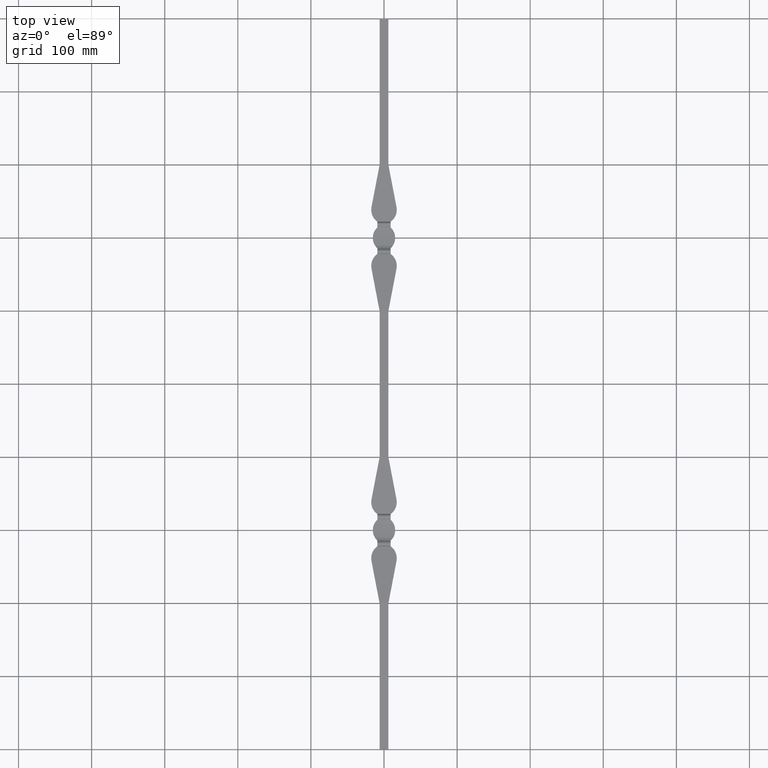
[diagram: clean part render]
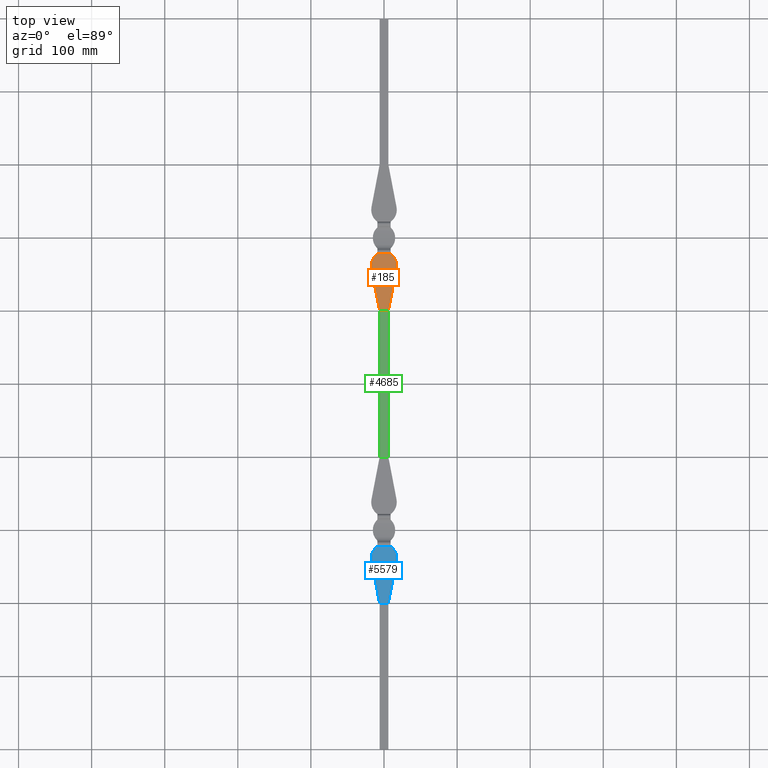
[diagram: same view with three faces highlighted in distinct colors, each labeled with its STEP entity id]
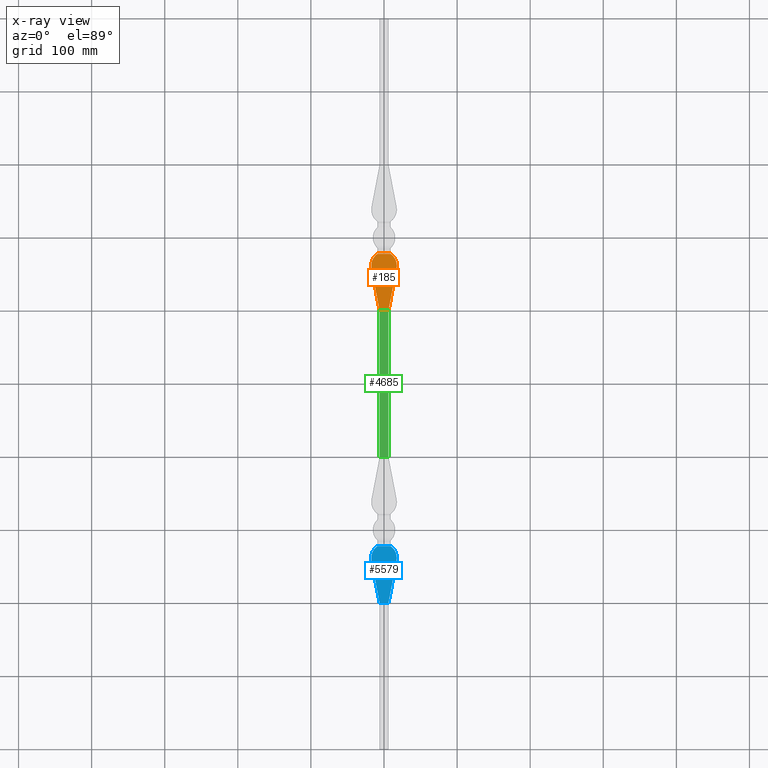
[diagram: x-ray of the same camera — body ghosted, the three highlighted faces saturated]
A machine part, top view with three faces highlighted in distinct colors.
The next image is the same camera in x-ray (body ghosted, the three faces saturated) — at least one of them is partly hidden behind the body in this view.
Their STEP definitions:

[orange] entity #185 — the highlighted planar face has unit normal (0, -0.048, -0.9988).
#48 = EDGE_LOOP ( 'NONE', ( #9005, #11735, #729, #10641, #9519, #1368 ) ) ;
#185 = ADVANCED_FACE ( 'NONE', ( #3580 ), #6810, .F. ) ;
#208 = CARTESIAN_POINT ( 'NONE',  ( 17.14419851115371429, -42.00000000000000000, 3.211538461538461231 ) ) ;
#729 = ORIENTED_EDGE ( 'NONE', *, *, #7050, .F. ) ;
#1172 = CARTESIAN_POINT ( 'NONE',  ( -15.62386009343402193, -26.60548291890626871, 2.471417448024340047 ) ) ;
#1368 = ORIENTED_EDGE ( 'NONE', *, *, #7156, .F. ) ;
#1386 = CARTESIAN_POINT ( 'NONE',  ( 6.000000000000000000, -99.99999999999997158, 5.999999999999998224 ) ) ;
#1622 = EDGE_CURVE ( 'NONE', #1824, #3146, #10512, .T. ) ;
#1634 = LINE ( 'NONE', #5470, #10610 ) ;
#1824 = VERTEX_POINT ( 'NONE', #11201 ) ;
#2048 = VERTEX_POINT ( 'NONE', #9568 ) ;
#2338 = LINE ( 'NONE', #6713, #5425 ) ;
#2683 = DIRECTION ( 'NONE',  ( 1.000000000000000000, 0.000000000000000000, 0.000000000000000000 ) ) ;
#2769 = LINE ( 'NONE', #1386, #9630 ) ;
#2800 = VECTOR ( 'NONE', #2683, 1000.000000000000000 ) ;
#3122 = LINE ( 'NONE', #4759, #2800 ) ;
#3146 = VERTEX_POINT ( 'NONE', #4784 ) ;
#3230 = CARTESIAN_POINT ( 'NONE',  ( -6.000000000000000000, -99.99999999999997158, 6.000000000000000000 ) ) ;
#3395 = DIRECTION ( 'NONE',  ( -1.000000000000000000, 4.625929269271485322E-15, 0.000000000000000000 ) ) ;
#3580 = FACE_OUTER_BOUND ( 'NONE', #48, .T. ) ;
#3598 = CARTESIAN_POINT ( 'NONE',  ( 17.14419851115371429, -42.00000000000000000, 3.211538461538461231 ) ) ;
#4161 = VERTEX_POINT ( 'NONE', #208 ) ;
#4208 =( BOUNDED_CURVE ( )  B_SPLINE_CURVE ( 3, ( #5858, #7871, #10957, #3598 ),
 .UNSPECIFIED., .F., .T. ) 
 B_SPLINE_CURVE_WITH_KNOTS ( ( 4, 4 ),
 ( 0.6075557776634181728, 1.760624203291724310 ),
 .UNSPECIFIED. ) 
 CURVE ( )  GEOMETRIC_REPRESENTATION_ITEM ( )  RATIONAL_B_SPLINE_CURVE ( ( 1.000000000000000000, 0.8922379711962259430, 0.8922379711962259430, 1.000000000000000000 ) ) 
 REPRESENTATION_ITEM ( '' )  );
#4573 = AXIS2_PLACEMENT_3D ( 'NONE', #7216, #9149, #7081 ) ;
#4759 = CARTESIAN_POINT ( 'NONE',  ( -17.50000000000000355, -22.00000000000000000, 2.250000000000000000 ) ) ;
#4784 = CARTESIAN_POINT ( 'NONE',  ( -17.14419851115371429, -42.00000000000000000, 3.211538461538461231 ) ) ;
#4817 = VERTEX_POINT ( 'NONE', #5717 ) ;
#5425 = VECTOR ( 'NONE', #3395, 1000.000000000000000 ) ;
#5470 = CARTESIAN_POINT ( 'NONE',  ( -6.000000000000000000, -99.99999999999997158, 5.999999999999998224 ) ) ;
#5717 = CARTESIAN_POINT ( 'NONE',  ( 9.000000000000000000, -22.00000000000000000, 2.250000000000000000 ) ) ;
#5858 = CARTESIAN_POINT ( 'NONE',  ( 9.000000000000000000, -22.00000000000000000, 2.250000000000000000 ) ) ;
#6261 = CARTESIAN_POINT ( 'NONE',  ( -18.66647083708079791, -34.07733110502264395, 2.830640918510703763 ) ) ;
#6713 = CARTESIAN_POINT ( 'NONE',  ( 0.000000000000000000, -100.0000000000000000, 6.000000000000000000 ) ) ;
#6810 = PLANE ( 'NONE',  #4573 ) ;
#7050 = EDGE_CURVE ( 'NONE', #2048, #8336, #2338, .T. ) ;
#7081 = DIRECTION ( 'NONE',  ( 0.000000000000000000, -0.9988463043298813071, 0.04802145693893659917 ) ) ;
#7156 = EDGE_CURVE ( 'NONE', #1824, #4817, #3122, .T. ) ;
#7216 = CARTESIAN_POINT ( 'NONE',  ( -17.50000000000000355, -100.0000000000000000, 6.000000000000000000 ) ) ;
#7460 = CARTESIAN_POINT ( 'NONE',  ( -9.000000000000000000, -22.00000000000000000, 2.250000000000000444 ) ) ;
#7871 = CARTESIAN_POINT ( 'NONE',  ( 15.62386009343402193, -26.60548291890626871, 2.471417448024340047 ) ) ;
#8336 = VERTEX_POINT ( 'NONE', #3230 ) ;
#8346 = CARTESIAN_POINT ( 'NONE',  ( -17.14419851115371429, -42.00000000000000000, 3.211538461538461231 ) ) ;
#8516 = EDGE_CURVE ( 'NONE', #3146, #8336, #1634, .T. ) ;
#9005 = ORIENTED_EDGE ( 'NONE', *, *, #1622, .T. ) ;
#9149 = DIRECTION ( 'NONE',  ( 0.000000000000000000, -0.04802145693893659917, -0.9988463043298813071 ) ) ;
#9519 = ORIENTED_EDGE ( 'NONE', *, *, #10343, .F. ) ;
#9568 = CARTESIAN_POINT ( 'NONE',  ( 6.000000000000000000, -100.0000000000000284, 6.000000000000000000 ) ) ;
#9630 = VECTOR ( 'NONE', #13116, 999.9999999999998863 ) ;
#10343 = EDGE_CURVE ( 'NONE', #4817, #4161, #4208, .T. ) ;
#10512 =( BOUNDED_CURVE ( )  B_SPLINE_CURVE ( 3, ( #7460, #1172, #6261, #8346 ),
 .UNSPECIFIED., .F., .F. ) 
 B_SPLINE_CURVE_WITH_KNOTS ( ( 4, 4 ),
 ( 0.6075557776634181728, 1.760624203291724310 ),
 .UNSPECIFIED. ) 
 CURVE ( )  GEOMETRIC_REPRESENTATION_ITEM ( )  RATIONAL_B_SPLINE_CURVE ( ( 1.000000000000000000, 0.8922379711962259430, 0.8922379711962259430, 1.000000000000000000 ) ) 
 REPRESENTATION_ITEM ( '' )  );
#10610 = VECTOR ( 'NONE', #10680, 999.9999999999998863 ) ;
#10641 = ORIENTED_EDGE ( 'NONE', *, *, #11396, .F. ) ;
#10680 = DIRECTION ( 'NONE',  ( 0.1884799131876506717, -0.9809440269699578607, 0.04716077052740182129 ) ) ;
#10957 = CARTESIAN_POINT ( 'NONE',  ( 18.66647083708079791, -34.07733110502264395, 2.830640918510703763 ) ) ;
#11201 = CARTESIAN_POINT ( 'NONE',  ( -9.000000000000000000, -22.00000000000000000, 2.250000000000000444 ) ) ;
#11396 = EDGE_CURVE ( 'NONE', #4161, #2048, #2769, .T. ) ;
#11735 = ORIENTED_EDGE ( 'NONE', *, *, #8516, .T. ) ;
#13116 = DIRECTION ( 'NONE',  ( -0.1884799131876506717, -0.9809440269699578607, 0.04716077052740182129 ) ) ;

[blue] entity #5579 — the highlighted planar face has unit normal (0, -0.048, -0.9988).
#328 = ORIENTED_EDGE ( 'NONE', *, *, #9921, .T. ) ;
#932 = CARTESIAN_POINT ( 'NONE',  ( 6.000000000000000000, -500.0000000000000000, 5.999999999999998224 ) ) ;
#1956 = LINE ( 'NONE', #4216, #7202 ) ;
#2742 = ORIENTED_EDGE ( 'NONE', *, *, #8707, .T. ) ;
#3134 = ORIENTED_EDGE ( 'NONE', *, *, #4990, .F. ) ;
#3292 = VECTOR ( 'NONE', #5080, 999.9999999999998863 ) ;
#3528 = CARTESIAN_POINT ( 'NONE',  ( -6.000000000000000000, -500.0000000000000000, 6.000000000000000000 ) ) ;
#3813 = CARTESIAN_POINT ( 'NONE',  ( -17.50000000000000355, -500.0000000000000000, 6.000000000000000000 ) ) ;
#4158 = CARTESIAN_POINT ( 'NONE',  ( -17.14419851115371429, -442.0000000000000000, 3.211538461538461231 ) ) ;
#4216 = CARTESIAN_POINT ( 'NONE',  ( -6.000000000000000000, -500.0000000000000000, 6.000000000000000000 ) ) ;
#4398 = VECTOR ( 'NONE', #10061, 1000.000000000000000 ) ;
#4527 = ORIENTED_EDGE ( 'NONE', *, *, #8509, .F. ) ;
#4585 = VERTEX_POINT ( 'NONE', #4158 ) ;
#4628 = ORIENTED_EDGE ( 'NONE', *, *, #11583, .F. ) ;
#4872 = CARTESIAN_POINT ( 'NONE',  ( -17.50000000000000355, -422.0000000000000568, 2.250000000000000000 ) ) ;
#4974 = AXIS2_PLACEMENT_3D ( 'NONE', #3813, #6066, #12222 ) ;
#4990 = EDGE_CURVE ( 'NONE', #11494, #5995, #11781, .T. ) ;
#5080 = DIRECTION ( 'NONE',  ( -0.1884799131876506717, -0.9809440269699578607, 0.04716077052740182129 ) ) ;
#5569 = CARTESIAN_POINT ( 'NONE',  ( -8.999999999999992895, -422.0000000000000568, 2.250000000000000000 ) ) ;
#5579 = ADVANCED_FACE ( 'NONE', ( #7059 ), #7130, .F. ) ;
#5586 = VECTOR ( 'NONE', #6171, 999.9999999999998863 ) ;
#5743 = CARTESIAN_POINT ( 'NONE',  ( -8.999999999999992895, -422.0000000000000568, 2.250000000000000000 ) ) ;
#5809 = CARTESIAN_POINT ( 'NONE',  ( 17.14419851115371429, -442.0000000000000000, 3.211538461538461231 ) ) ;
#5829 =( BOUNDED_CURVE ( )  B_SPLINE_CURVE ( 3, ( #7593, #12922, #12874, #10815 ),
 .UNSPECIFIED., .F., .F. ) 
 B_SPLINE_CURVE_WITH_KNOTS ( ( 4, 4 ),
 ( 0.6075557776634180618, 1.760624203291722978 ),
 .UNSPECIFIED. ) 
 CURVE ( )  GEOMETRIC_REPRESENTATION_ITEM ( )  RATIONAL_B_SPLINE_CURVE ( ( 1.000000000000000000, 0.8922379711962260540, 0.8922379711962260540, 1.000000000000000000 ) ) 
 REPRESENTATION_ITEM ( '' )  );
#5995 = VERTEX_POINT ( 'NONE', #9538 ) ;
#6066 = DIRECTION ( 'NONE',  ( 0.000000000000000000, -0.04802145693893659917, -0.9988463043298813071 ) ) ;
#6171 = DIRECTION ( 'NONE',  ( 0.1884799131876506717, -0.9809440269699578607, 0.04716077052740182129 ) ) ;
#6973 = CARTESIAN_POINT ( 'NONE',  ( 8.999999999999992895, -422.0000000000000568, 2.250000000000000000 ) ) ;
#7059 = FACE_OUTER_BOUND ( 'NONE', #9335, .T. ) ;
#7130 = PLANE ( 'NONE',  #4974 ) ;
#7202 = VECTOR ( 'NONE', #7418, 1000.000000000000000 ) ;
#7251 = EDGE_CURVE ( 'NONE', #7458, #4585, #8267, .T. ) ;
#7418 = DIRECTION ( 'NONE',  ( 1.000000000000000000, 0.000000000000000000, 0.000000000000000000 ) ) ;
#7458 = VERTEX_POINT ( 'NONE', #5569 ) ;
#7593 = CARTESIAN_POINT ( 'NONE',  ( 8.999999999999992895, -422.0000000000000568, 2.250000000000000000 ) ) ;
#7843 = CARTESIAN_POINT ( 'NONE',  ( -15.62386009343400950, -426.6054829189062616, 2.471417448024339603 ) ) ;
#7938 = CARTESIAN_POINT ( 'NONE',  ( -18.66647083708079080, -434.0773311050226084, 2.830640918510702875 ) ) ;
#8267 =( BOUNDED_CURVE ( )  B_SPLINE_CURVE ( 3, ( #5743, #7843, #7938, #8971 ),
 .UNSPECIFIED., .F., .T. ) 
 B_SPLINE_CURVE_WITH_KNOTS ( ( 4, 4 ),
 ( 0.6075557776634180618, 1.760624203291722978 ),
 .UNSPECIFIED. ) 
 CURVE ( )  GEOMETRIC_REPRESENTATION_ITEM ( )  RATIONAL_B_SPLINE_CURVE ( ( 1.000000000000000000, 0.8922379711962260540, 0.8922379711962260540, 1.000000000000000000 ) ) 
 REPRESENTATION_ITEM ( '' )  );
#8509 = EDGE_CURVE ( 'NONE', #9345, #11494, #5829, .T. ) ;
#8707 = EDGE_CURVE ( 'NONE', #8816, #5995, #1956, .T. ) ;
#8816 = VERTEX_POINT ( 'NONE', #3528 ) ;
#8971 = CARTESIAN_POINT ( 'NONE',  ( -17.14419851115371429, -442.0000000000000000, 3.211538461538461231 ) ) ;
#9335 = EDGE_LOOP ( 'NONE', ( #10278, #328, #2742, #3134, #4527, #4628 ) ) ;
#9345 = VERTEX_POINT ( 'NONE', #6973 ) ;
#9538 = CARTESIAN_POINT ( 'NONE',  ( 6.000000000000000000, -500.0000000000000000, 6.000000000000000000 ) ) ;
#9921 = EDGE_CURVE ( 'NONE', #4585, #8816, #11132, .T. ) ;
#10061 = DIRECTION ( 'NONE',  ( 1.000000000000000000, 0.000000000000000000, 0.000000000000000000 ) ) ;
#10278 = ORIENTED_EDGE ( 'NONE', *, *, #7251, .T. ) ;
#10462 = LINE ( 'NONE', #4872, #4398 ) ;
#10815 = CARTESIAN_POINT ( 'NONE',  ( 17.14419851115371429, -442.0000000000000000, 3.211538461538461231 ) ) ;
#11132 = LINE ( 'NONE', #12504, #5586 ) ;
#11494 = VERTEX_POINT ( 'NONE', #5809 ) ;
#11583 = EDGE_CURVE ( 'NONE', #7458, #9345, #10462, .T. ) ;
#11781 = LINE ( 'NONE', #932, #3292 ) ;
#12222 = DIRECTION ( 'NONE',  ( 0.000000000000000000, -0.9988463043298813071, 0.04802145693893659917 ) ) ;
#12504 = CARTESIAN_POINT ( 'NONE',  ( -6.000000000000000000, -500.0000000000000000, 5.999999999999998224 ) ) ;
#12874 = CARTESIAN_POINT ( 'NONE',  ( 18.66647083708079080, -434.0773311050226084, 2.830640918510702875 ) ) ;
#12922 = CARTESIAN_POINT ( 'NONE',  ( 15.62386009343400950, -426.6054829189062616, 2.471417448024339603 ) ) ;

[green] entity #4685 — the highlighted planar face has unit normal (0, 0, -1).
#59 = VERTEX_POINT ( 'NONE', #9852 ) ;
#422 = CARTESIAN_POINT ( 'NONE',  ( -6.000000000001467271, -416.9705627484771071, 6.000000000000000000 ) ) ;
#1413 = DIRECTION ( 'NONE',  ( 4.625929269271485322E-15, 1.000000000000000000, -0.000000000000000000 ) ) ;
#2048 = VERTEX_POINT ( 'NONE', #9568 ) ;
#2169 = CARTESIAN_POINT ( 'NONE',  ( 6.000000000000000000, -300.0000000000000000, 6.000000000000000000 ) ) ;
#2338 = LINE ( 'NONE', #6713, #5425 ) ;
#2791 = FACE_OUTER_BOUND ( 'NONE', #8342, .T. ) ;
#3230 = CARTESIAN_POINT ( 'NONE',  ( -6.000000000000000000, -99.99999999999997158, 6.000000000000000000 ) ) ;
#3395 = DIRECTION ( 'NONE',  ( -1.000000000000000000, 4.625929269271485322E-15, 0.000000000000000000 ) ) ;
#3438 = LINE ( 'NONE', #8320, #9661 ) ;
#4241 = VECTOR ( 'NONE', #1413, 1000.000000000000000 ) ;
#4472 = CARTESIAN_POINT ( 'NONE',  ( 5.999999999998533617, -416.9705627484771640, 6.000000000000000000 ) ) ;
#4552 = DIRECTION ( 'NONE',  ( -1.000000000000000000, 0.000000000000000000, 0.000000000000000000 ) ) ;
#4685 = ADVANCED_FACE ( 'NONE', ( #2791 ), #5481, .F. ) ;
#4831 = EDGE_CURVE ( 'NONE', #59, #8336, #5086, .T. ) ;
#5086 = LINE ( 'NONE', #422, #8038 ) ;
#5425 = VECTOR ( 'NONE', #3395, 1000.000000000000000 ) ;
#5481 = PLANE ( 'NONE',  #8237 ) ;
#5504 = CARTESIAN_POINT ( 'NONE',  ( 5.999999999998533617, -416.9705627484771640, 6.000000000000000000 ) ) ;
#5631 = DIRECTION ( 'NONE',  ( 4.625929269271485322E-15, 1.000000000000000000, -0.000000000000000000 ) ) ;
#6013 = ORIENTED_EDGE ( 'NONE', *, *, #10184, .F. ) ;
#6101 = EDGE_CURVE ( 'NONE', #8192, #2048, #13561, .T. ) ;
#6159 = ORIENTED_EDGE ( 'NONE', *, *, #7050, .T. ) ;
#6713 = CARTESIAN_POINT ( 'NONE',  ( 0.000000000000000000, -100.0000000000000000, 6.000000000000000000 ) ) ;
#7050 = EDGE_CURVE ( 'NONE', #2048, #8336, #2338, .T. ) ;
#7118 = ORIENTED_EDGE ( 'NONE', *, *, #4831, .F. ) ;
#7644 = DIRECTION ( 'NONE',  ( 0.000000000000000000, 0.000000000000000000, -1.000000000000000000 ) ) ;
#8038 = VECTOR ( 'NONE', #5631, 1000.000000000000000 ) ;
#8192 = VERTEX_POINT ( 'NONE', #2169 ) ;
#8237 = AXIS2_PLACEMENT_3D ( 'NONE', #4472, #7644, #4552 ) ;
#8320 = CARTESIAN_POINT ( 'NONE',  ( 0.000000000000000000, -300.0000000000000568, 6.000000000000000000 ) ) ;
#8336 = VERTEX_POINT ( 'NONE', #3230 ) ;
#8342 = EDGE_LOOP ( 'NONE', ( #7118, #6013, #8645, #6159 ) ) ;
#8645 = ORIENTED_EDGE ( 'NONE', *, *, #6101, .T. ) ;
#9568 = CARTESIAN_POINT ( 'NONE',  ( 6.000000000000000000, -100.0000000000000284, 6.000000000000000000 ) ) ;
#9661 = VECTOR ( 'NONE', #12474, 1000.000000000000000 ) ;
#9852 = CARTESIAN_POINT ( 'NONE',  ( -6.000000000000000000, -300.0000000000000568, 6.000000000000000000 ) ) ;
#10184 = EDGE_CURVE ( 'NONE', #8192, #59, #3438, .T. ) ;
#12474 = DIRECTION ( 'NONE',  ( -1.000000000000000000, -4.625929269271485322E-15, 0.000000000000000000 ) ) ;
#13561 = LINE ( 'NONE', #5504, #4241 ) ;